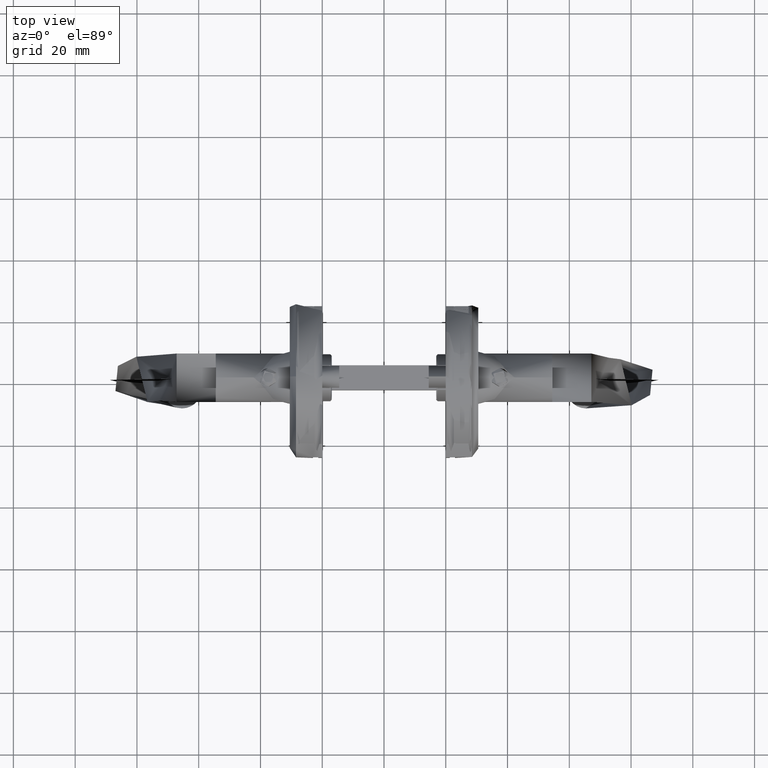
[diagram: clean part render]
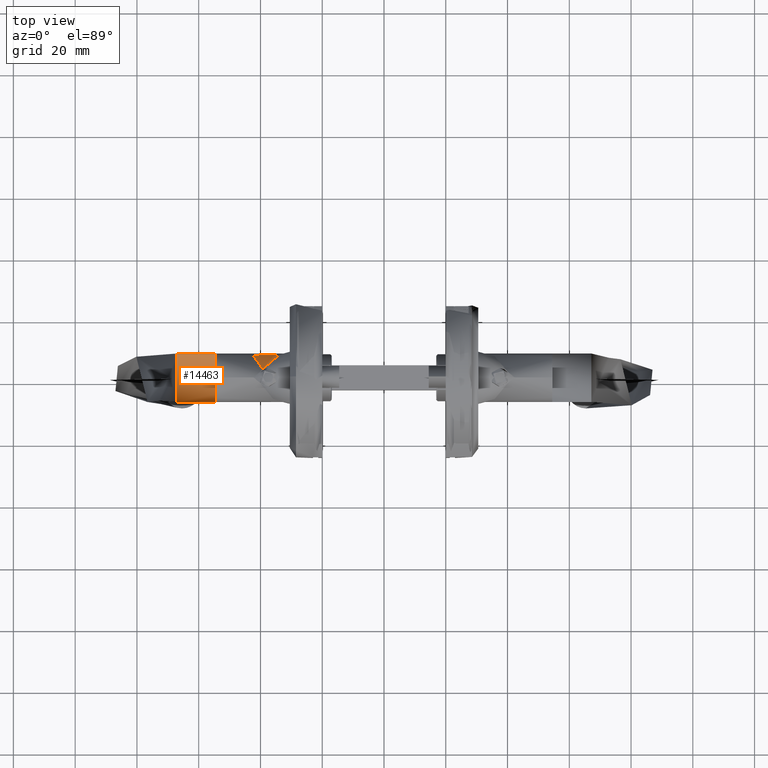
[diagram: same view with one face highlighted and labeled with its STEP entity id]
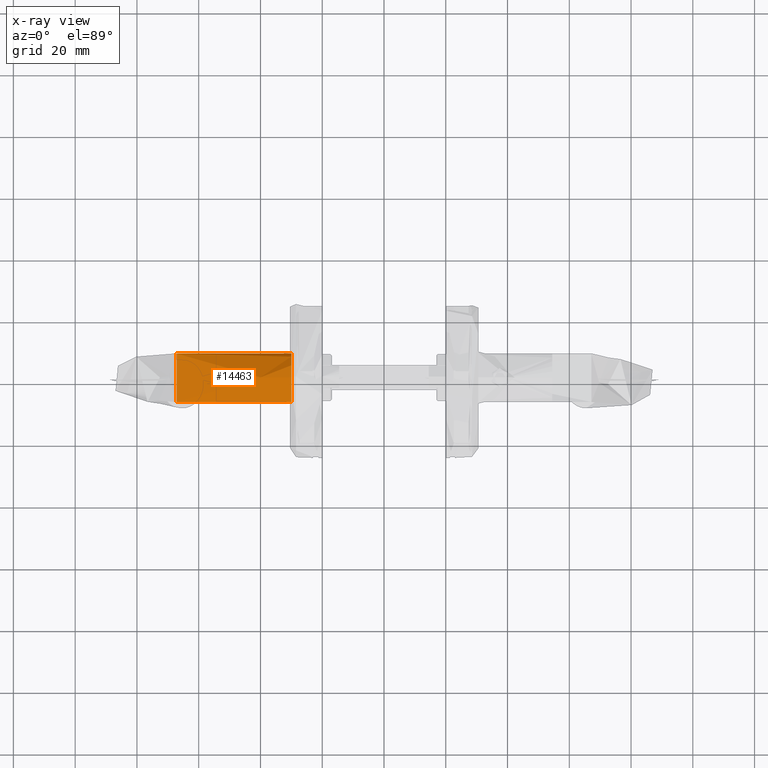
[diagram: x-ray of the same camera — body ghosted, the highlighted face saturated]
A machine part, top view. The second image highlights one B-rep face of the part: STEP entity #14463.
The next image is the same camera in x-ray: the body ghosted, the highlighted face saturated — about 0% of this face is hidden behind the body in this view.
In plain terms, the highlighted cylindrical surface (bore or boss wall) has radius 7.85 mm, axis along (1, -0, 0).
Its self-contained STEP definition (entity closure, byte-faithful):
#32 = CARTESIAN_POINT ( 'NONE',  ( -14.35357129306534300, -6.399310320377332500, 34.42183017396698800 ) ) ;
#115 = CARTESIAN_POINT ( 'NONE',  ( -17.65104224893137200, -0.5485955849642213400, 32.45115226543157400 ) ) ;
#200 = CARTESIAN_POINT ( 'NONE',  ( -17.57262974543936100, 1.134681050054269400, 32.49801417580253800 ) ) ;
#796 = CARTESIAN_POINT ( 'NONE',  ( -5.253388453544001600, -6.418151136303375600, 39.85854754309335800 ) ) ;
#859 = FACE_BOUND ( 'NONE', #15450, .T. ) ;
#967 = CARTESIAN_POINT ( 'NONE',  ( -2.316176063174189000, 2.370476067375542100, 8.310737631373999800 ) ) ;
#968 = CARTESIAN_POINT ( 'NONE',  ( -4.109018551959541900, -5.413163599464264000, 40.54156674517761900 ) ) ;
#1051 = CARTESIAN_POINT ( 'NONE',  ( -2.125298850725605000, 1.653862943130006300, 9.381742250496421000 ) ) ;
#1142 = CARTESIAN_POINT ( 'NONE',  ( -1.955297538070216400, 0.3307107556887429200, 5.016492887881394600 ) ) ;
#1143 = CARTESIAN_POINT ( 'NONE',  ( -9.201717365671292700, -7.828076704413113000, 37.50071009586421400 ) ) ;
#1163 = CYLINDRICAL_SURFACE ( 'NONE', #4557, 7.849999999999999600 ) ;
#1525 = CARTESIAN_POINT ( 'NONE',  ( -1.955280179655495500, -0.3298365753949350500, 9.983558267054554800 ) ) ;
#1717 = CARTESIAN_POINT ( 'NONE',  ( -15.99875071225102200, 4.823530211635191900, 33.43861643824055100 ) ) ;
#1753 = CARTESIAN_POINT ( 'NONE',  ( -2.316444650212627500, -2.371347067262874000, 6.691386533385500700 ) ) ;
#1968 = CARTESIAN_POINT ( 'NONE',  ( -10.99382604289245100, -7.762390882508214000, 36.42972526430688200 ) ) ;
#2016 = B_SPLINE_CURVE_WITH_KNOTS ( 'NONE', 3,
 ( #16444, #18392, #20438, #16703, #18477, #10827, #18652, #18568, #1051, #10661, #12630, #967, #16362, #3020, #6922, #6833, #8623, #20611, #2931, #16530, #8789, #10744, #5067, #24342, #12713, #16614, #4981, #20523, #24430, #1142, #20269, #4723, #12802, #14743, #21178, #21594, #9932, #8230, #21832, #3049, #18598, #24543, #14858, #1753, #21565, #14825, #7264, #24764, #13862, #6281, #24718, #5678, #14247, #19037, #24898, #13348, #13268, #9435, #17250, #1525, #5615, #13436 ),
 .UNSPECIFIED., .T., .F.,
 ( 4, 2, 2, 2, 2, 2, 2, 2, 2, 2, 2, 2, 2, 2, 2, 2, 2, 2, 2, 2, 2, 2, 2, 2, 2, 2, 2, 2, 2, 2, 4 ),
 ( 0.0000000000000000000, 0.0004916676346564895700, 0.0009833352693129791500, 0.001475002903969468700, 0.001966670538625958300, 0.002950005807938938300, 0.003441673442595425700, 0.003933341077251913100, 0.004425008711908401400, 0.004916676346564888800, 0.005408343981221377100, 0.005900011615877864500, 0.006391679250534351900, 0.006883346885190840200, 0.007375014519847327600, 0.007866682154503815800, 0.008358349789160302400, 0.008850017423816790600, 0.009341685058473278900, 0.009833352693129767200, 0.01032502032778625400, 0.01081668796244274200, 0.01130835559709923000, 0.01180002323175571900, 0.01229169086641220500, 0.01278335850106869300, 0.01376669377038167300, 0.01425836140503816300, 0.01475002903969465500, 0.01524169667435114700, 0.01573336430900763900 ),
 .UNSPECIFIED. ) ;
#2056 = CARTESIAN_POINT ( 'NONE',  ( -15.85750056251942300, -5.020785842061797200, 33.52303220819850800 ) ) ;
#2139 = CARTESIAN_POINT ( 'NONE',  ( -14.14800668126363100, -6.540521879636009400, 34.54468239758804800 ) ) ;
#2299 = CARTESIAN_POINT ( 'NONE',  ( -16.32109289892299100, -4.378084431324863200, 33.24597406632418000 ) ) ;
#2665 = AXIS2_PLACEMENT_3D ( 'NONE', #21843, #12409, #12321 ) ;
#2673 = CARTESIAN_POINT ( 'NONE',  ( -2.421592569544382700, -2.734158000283482400, 41.54847655102713600 ) ) ;
#2839 = CARTESIAN_POINT ( 'NONE',  ( -2.180633123493969100, 1.908906402951196800, 41.69178392970900400 ) ) ;
#2931 = CARTESIAN_POINT ( 'NONE',  ( -2.316578114705570200, 2.371764267103500400, 6.692637083956163300 ) ) ;
#2932 = CARTESIAN_POINT ( 'NONE',  ( -2.073011743109473700, -1.411386401086643000, 41.75638261178124100 ) ) ;
#2981 = CARTESIAN_POINT ( 'NONE',  ( -9.799999999999998900, -7.850000000000003200, 37.14319526627224400 ) ) ;
#3020 = CARTESIAN_POINT ( 'NONE',  ( -2.353210535344116800, 2.483744156676578600, 7.828896883903592400 ) ) ;
#3021 = CARTESIAN_POINT ( 'NONE',  ( -4.291505704126604900, -5.598596695899640700, 40.43265611692762500 ) ) ;
#3024 = EDGE_CURVE ( 'NONE', #17427, #17427, #2016, .T. ) ;
#3049 = CARTESIAN_POINT ( 'NONE',  ( -2.178193592102579700, -1.882711239978616600, 5.847114561690562900 ) ) ;
#3115 = CARTESIAN_POINT ( 'NONE',  ( -9.800000000000002500, 7.849999999999996100, 37.14319526627220100 ) ) ;
#3291 = CARTESIAN_POINT ( 'NONE',  ( -9.559678598722662500, 7.847235694768585300, 37.28681045045824800 ) ) ;
#3604 = CARTESIAN_POINT ( 'NONE',  ( -9.800000000000002500, 7.849999999999996100, 37.14319526627220100 ) ) ;
#3808 = EDGE_CURVE ( 'NONE', #7682, #7682, #19570, .T. ) ;
#3849 = CARTESIAN_POINT ( 'NONE',  ( -12.15740308712198600, 7.503612865233395500, 35.73433306627625000 ) ) ;
#4023 = CARTESIAN_POINT ( 'NONE',  ( -10.75686026480675600, -7.795137972507416400, 36.57134386541142800 ) ) ;
#4109 = CARTESIAN_POINT ( 'NONE',  ( -16.71909482841025600, 3.717517051897657700, 33.00811492503296300 ) ) ;
#4274 = CARTESIAN_POINT ( 'NONE',  ( -16.45047633043706300, 4.179111251687365900, 33.16865024038974500 ) ) ;
#4557 = AXIS2_PLACEMENT_3D ( 'NONE', #22550, #24241, #22462 ) ;
#4645 = CARTESIAN_POINT ( 'NONE',  ( -7.438485382097936400, 7.502416347410010300, 38.55360818978967100 ) ) ;
#4723 = CARTESIAN_POINT ( 'NONE',  ( -1.949978466111725200, -0.1628314269536474700, 4.999932383585617800 ) ) ;
#4724 = CARTESIAN_POINT ( 'NONE',  ( -8.845382384011093900, -7.795390510430003400, 37.71361191387427400 ) ) ;
#4807 = CARTESIAN_POINT ( 'NONE',  ( -2.252936717697269700, 2.177262612648156000, 41.64859851981224600 ) ) ;
#4897 = CARTESIAN_POINT ( 'NONE',  ( -1.950577279048938400, -0.2972517273805354000, 41.82933701776780600 ) ) ;
#4981 = CARTESIAN_POINT ( 'NONE',  ( -2.027546660310505500, 1.111073571916674700, 5.254535162568868300 ) ) ;
#4982 = CARTESIAN_POINT ( 'NONE',  ( -3.741416826449961000, 5.019479760348146700, 40.75999446177371500 ) ) ;
#5067 = CARTESIAN_POINT ( 'NONE',  ( -2.178237088088306200, 1.882872320206647100, 5.847327085301101200 ) ) ;
#5615 = CARTESIAN_POINT ( 'NONE',  ( -1.949999999999996000, -0.1663271035317409300, 10.00000000000000000 ) ) ;
#5678 = CARTESIAN_POINT ( 'NONE',  ( -2.258555993685986700, -2.183181670281116600, 8.760974231041256400 ) ) ;
#5882 = CARTESIAN_POINT ( 'NONE',  ( -16.30616993301565300, 4.400080328575047200, 33.25489252523922800 ) ) ;
#6057 = CARTESIAN_POINT ( 'NONE',  ( -11.69943884292389800, -7.620579195227852800, 36.00802767375568400 ) ) ;
#6141 = CARTESIAN_POINT ( 'NONE',  ( -14.95152921689428500, -5.928712662208921500, 34.06447070469633300 ) ) ;
#6281 = CARTESIAN_POINT ( 'NONE',  ( -2.332127616856067400, -2.419613174249177800, 8.150025874492433400 ) ) ;
#6524 = ORIENTED_EDGE ( 'NONE', *, *, #11182, .T. ) ;
#6833 = CARTESIAN_POINT ( 'NONE',  ( -2.358767590165169900, 2.500112044877545300, 7.337458955391063900 ) ) ;
#6834 = CARTESIAN_POINT ( 'NONE',  ( -2.865164771531902900, 3.688091781041662900, 41.28304057995937600 ) ) ;
#6922 = CARTESIAN_POINT ( 'NONE',  ( -2.358691909127926100, 2.499886779604183500, 7.665969627596680900 ) ) ;
#6923 = CARTESIAN_POINT ( 'NONE',  ( -5.451299777050556900, 6.540086302131724600, 39.73958289505424100 ) ) ;
#7264 = CARTESIAN_POINT ( 'NONE',  ( -2.358719915615795900, -2.499970141168991900, 7.334772854630341700 ) ) ;
#7368 = EDGE_LOOP ( 'NONE', ( #17516 ) ) ;
#7397 = ORIENTED_EDGE ( 'NONE', *, *, #3024, .F. ) ;
#7507 = CARTESIAN_POINT ( 'NONE',  ( -10.75477341246245200, 7.795372452662993700, 36.57259103752255000 ) ) ;
#7581 = CARTESIAN_POINT ( 'NONE',  ( -10.04008003149096800, 7.847240759425253600, 36.99971548413870400 ) ) ;
#7682 = VERTEX_POINT ( 'NONE', #11891 ) ;
#7831 = CARTESIAN_POINT ( 'NONE',  ( -17.64945818387600700, 0.2963723960978519300, 32.45209895519838700 ) ) ;
#7998 = CARTESIAN_POINT ( 'NONE',  ( -13.08007296119672700, -7.148519040319141200, 35.18291497585266100 ) ) ;
#8079 = CARTESIAN_POINT ( 'NONE',  ( -10.04036629808053900, -7.847235608720925600, 36.99954440173789300 ) ) ;
#8165 = CARTESIAN_POINT ( 'NONE',  ( -17.41904579791604500, -1.910195872802551400, 32.58980103201470500 ) ) ;
#8230 = CARTESIAN_POINT ( 'NONE',  ( -2.098649725234988900, -1.526616055230516600, 5.513571094196465500 ) ) ;
#8536 = CARTESIAN_POINT ( 'NONE',  ( -1.966244523914235700, -0.5775107957772281900, 41.82001593003419500 ) ) ;
#8623 = CARTESIAN_POINT ( 'NONE',  ( -2.353169705818936500, 2.483619098085724000, 7.170577947304412400 ) ) ;
#8705 = CARTESIAN_POINT ( 'NONE',  ( -4.855143307316787100, -6.118175363035818200, 40.09625494118125000 ) ) ;
#8789 = CARTESIAN_POINT ( 'NONE',  ( -2.254673965305798300, 2.167789861347161100, 6.244209587272374400 ) ) ;
#8790 = CARTESIAN_POINT ( 'NONE',  ( -3.132125207152332900, 4.151313813516864600, 41.12367548384519000 ) ) ;
#8879 = CARTESIAN_POINT ( 'NONE',  ( -6.523099367792066300, 7.150169549534139100, 39.09997275277721200 ) ) ;
#9087 = ORIENTED_EDGE ( 'NONE', *, *, #9237, .T. ) ;
#9237 = EDGE_CURVE ( 'NONE', #11614, #11520, #22105, .T. ) ;
#9435 = CARTESIAN_POINT ( 'NONE',  ( -1.990504578532325400, -0.8108120482076873700, 9.870512575395322200 ) ) ;
#9460 = CARTESIAN_POINT ( 'NONE',  ( -11.69441882599391600, 7.632902056393172400, 36.01102780221668800 ) ) ;
#9791 = CARTESIAN_POINT ( 'NONE',  ( -10.27996913007882200, -7.836230745084145100, 36.85634980983410700 ) ) ;
#9867 = CARTESIAN_POINT ( 'NONE',  ( -16.46699291987990300, -4.152732065929569700, 33.15877937924341300 ) ) ;
#9917 = CARTESIAN_POINT ( 'NONE',  ( -1.949999999999996800, 2.164934898019186600E-016, 9.999999999999998200 ) ) ;
#9932 = CARTESIAN_POINT ( 'NONE',  ( -2.049972585820543500, -1.256354931608745500, 5.332506363626000800 ) ) ;
#9952 = CARTESIAN_POINT ( 'NONE',  ( -9.918725322543073400, -7.849999999999999600, 37.07224107943016400 ) ) ;
#10577 = CARTESIAN_POINT ( 'NONE',  ( -2.756092622608835400, -3.475539224899287600, 41.34890607050545700 ) ) ;
#10601 = FACE_OUTER_BOUND ( 'NONE', #13763, .T. ) ;
#10661 = CARTESIAN_POINT ( 'NONE',  ( -2.204687313181853200, 1.997229744117844400, 9.038161069933455100 ) ) ;
#10662 = CARTESIAN_POINT ( 'NONE',  ( -6.089938077111170900, -6.935400571786017200, 39.35916314962603500 ) ) ;
#10744 = CARTESIAN_POINT ( 'NONE',  ( -2.205139297483595900, 1.987296848023907000, 5.974557873437214900 ) ) ;
#10745 = CARTESIAN_POINT ( 'NONE',  ( -4.647200406563943200, 5.927608666410011800, 40.21943120990394500 ) ) ;
#10827 = CARTESIAN_POINT ( 'NONE',  ( -2.027718302237828200, 1.112353659052460500, 9.744878191350077000 ) ) ;
#11182 = EDGE_CURVE ( 'NONE', #11520, #11614, #16174, .T. ) ;
#11420 = CARTESIAN_POINT ( 'NONE',  ( -15.49113388039177200, 5.413003490075698900, 33.74198507739902200 ) ) ;
#11520 = VERTEX_POINT ( 'NONE', #24395 ) ;
#11614 = VERTEX_POINT ( 'NONE', #2981 ) ;
#11672 = CARTESIAN_POINT ( 'NONE',  ( -17.35025921179665100, 2.218023987386423400, 32.63091017519848700 ) ) ;
#11891 = CARTESIAN_POINT ( 'NONE',  ( -1.950000000000000400, 2.164934898019130600E-016, -4.837936020300735600E-031 ) ) ;
#11921 = CARTESIAN_POINT ( 'NONE',  ( -16.73408274044124500, -3.689508741532313800, 32.99915765216238800 ) ) ;
#12321 = DIRECTION ( 'NONE',  ( 1.000000000000000000, -1.110223024625213700E-016, -6.162975822039153600E-032 ) ) ;
#12409 = DIRECTION ( 'NONE',  ( -8.628166150854809000E-032, -7.268422299037821300E-031, 1.000000000000000000 ) ) ;
#12456 = CARTESIAN_POINT ( 'NONE',  ( -7.442851232686801500, -7.503692363737226100, 38.55135595264719200 ) ) ;
#12547 = CARTESIAN_POINT ( 'NONE',  ( -2.027475220185856100, -1.135386333156268400, 41.78353077638249900 ) ) ;
#12630 = CARTESIAN_POINT ( 'NONE',  ( -2.258489346735789400, 2.182940008413202000, 8.761182814414112800 ) ) ;
#12631 = CARTESIAN_POINT ( 'NONE',  ( -9.681299806161545600, -7.850000000000003200, 37.21413421223150000 ) ) ;
#12713 = CARTESIAN_POINT ( 'NONE',  ( -2.098814674166303200, 1.527437675453569900, 5.514210146021991200 ) ) ;
#12714 = CARTESIAN_POINT ( 'NONE',  ( -4.843451137757957000, 6.092530262975191000, 40.10231697249330600 ) ) ;
#12802 = CARTESIAN_POINT ( 'NONE',  ( -1.955152015191741900, -0.3275476067856499800, 5.016033858577822400 ) ) ;
#12803 = CARTESIAN_POINT ( 'NONE',  ( -3.764512232190127400, -5.026181194617136000, 40.74716455835411500 ) ) ;
#13224 = CARTESIAN_POINT ( 'NONE',  ( -9.200900521763756500, 7.828017236973570500, 37.50116973058609900 ) ) ;
#13268 = CARTESIAN_POINT ( 'NONE',  ( -2.027775020038261400, -1.112723584859272900, 9.744680884073286400 ) ) ;
#13348 = CARTESIAN_POINT ( 'NONE',  ( -2.049868104465798700, -1.255727908668479200, 9.667869604537893100 ) ) ;
#13378 = CARTESIAN_POINT ( 'NONE',  ( -15.83563334064745700, 5.026006546491918100, 33.53610078458348900 ) ) ;
#13436 = CARTESIAN_POINT ( 'NONE',  ( -1.949999999999996400, 3.388131789017201400E-016, 9.999999999999998200 ) ) ;
#13625 = CARTESIAN_POINT ( 'NONE',  ( -12.16536347142613500, -7.489068756313471900, 35.72957567684014200 ) ) ;
#13710 = CARTESIAN_POINT ( 'NONE',  ( -17.07664006248831300, -2.957358014262647200, 32.79443404549518700 ) ) ;
#13763 = EDGE_LOOP ( 'NONE', ( #9087, #6524 ) ) ;
#13862 = CARTESIAN_POINT ( 'NONE',  ( -2.353272379704622000, -2.483927050670778200, 7.827365174470029900 ) ) ;
#13876 = CARTESIAN_POINT ( 'NONE',  ( -17.59208916033434600, -1.100306816418359600, 32.48638458465227800 ) ) ;
#14247 = CARTESIAN_POINT ( 'NONE',  ( -2.204762430838682600, -1.997535714934925100, 9.037818931509381300 ) ) ;
#14409 = CARTESIAN_POINT ( 'NONE',  ( -3.149671151634519700, -4.179344478324840600, 41.11406583271772100 ) ) ;
#14463 = ADVANCED_FACE ( 'NONE', ( #859, #20962, #10601 ), #1163, .F. ) ;
#14493 = CARTESIAN_POINT ( 'NONE',  ( -2.007757005492132800, 1.099158828670636000, 41.79505890844694700 ) ) ;
#14578 = CARTESIAN_POINT ( 'NONE',  ( -9.799999999999998900, -7.850000000000003200, 37.14319526627224400 ) ) ;
#14664 = CARTESIAN_POINT ( 'NONE',  ( -5.245377951390922000, 6.398571686195714900, 39.86246615392765600 ) ) ;
#14743 = CARTESIAN_POINT ( 'NONE',  ( -1.975438278726478800, -0.6520438707957761900, 5.080865027122206900 ) ) ;
#14744 = CARTESIAN_POINT ( 'NONE',  ( -8.607514503791597000, 7.762575857938896800, 37.85560955154471700 ) ) ;
#14825 = CARTESIAN_POINT ( 'NONE',  ( -2.353057057999240700, -2.483281829276065900, 7.168260144729456900 ) ) ;
#14858 = CARTESIAN_POINT ( 'NONE',  ( -2.277493905325215900, -2.244724847799442800, 6.387186893733582100 ) ) ;
#15450 = EDGE_LOOP ( 'NONE', ( #7397 ) ) ;
#15488 = CARTESIAN_POINT ( 'NONE',  ( -13.51028545492318700, 6.935280215234008900, 34.92580573404001900 ) ) ;
#15579 = CARTESIAN_POINT ( 'NONE',  ( -9.799999999999998900, -7.850000000000003200, 37.14319526627224400 ) ) ;
#15662 = CARTESIAN_POINT ( 'NONE',  ( -14.75518678323899700, -6.093628479053357700, 34.18181144907029500 ) ) ;
#15750 = CARTESIAN_POINT ( 'NONE',  ( -12.39775539888733700, -7.411719953067242600, 35.59069056042803000 ) ) ;
#16174 = B_SPLINE_CURVE_WITH_KNOTS ( 'NONE', 3,
 ( #3604, #19236, #7581, #19153, #25004, #7507, #21110, #9460, #3849, #23062, #15488, #17447, #21363, #19312, #11420, #13378, #1717, #5882, #4274, #4109, #21773, #19489, #11672, #17866, #200, #21693, #7831, #115, #13876, #8165, #17704, #23324, #13710, #21611, #11921, #9867, #2299, #2056, #17618, #6141, #15662, #32, #2139, #21440, #7998, #15750, #13625, #6057, #19737, #1968, #4023, #17532, #9791, #8079, #9952, #15579 ),
 .UNSPECIFIED., .F., .F.,
 ( 4, 2, 2, 2, 2, 2, 2, 2, 2, 2, 2, 2, 2, 2, 2, 2, 2, 2, 2, 2, 2, 2, 2, 2, 2, 2, 2, 4 ),
 ( -1.888204577493560600E-005, 0.0003960536774215158000, 0.0008109894006179672100, 0.001640860847010885500, 0.003300603739796721300, 0.004960346632582557500, 0.006620089525368394600, 0.007449960971761305400, 0.008279832418154215200, 0.009109703864547123400, 0.009939575310940031500, 0.01159931820372584400, 0.01242918965011875100, 0.01325906109651165500, 0.01491880398929746600, 0.01574867543569036900, 0.01657854688208327100, 0.01740841832847617500, 0.01823828977486907600, 0.01989803266765488600, 0.02072790411404779700, 0.02155777556044070600, 0.02321751845322652900, 0.02404738989961944400, 0.02487726134601236600, 0.02570713279240528100, 0.02612206851560174700, 0.02653700423879821700 ),
 .UNSPECIFIED. ) ;
#16280 = CARTESIAN_POINT ( 'NONE',  ( -1.948892287110549800, 0.5475310466646640100, 41.83025616357124900 ) ) ;
#16362 = CARTESIAN_POINT ( 'NONE',  ( -2.331953651937851600, 2.419078772989927500, 8.152085949960667900 ) ) ;
#16363 = CARTESIAN_POINT ( 'NONE',  ( -9.320877216740267800, -7.836278607821168600, 37.42951053839357900 ) ) ;
#16444 = CARTESIAN_POINT ( 'NONE',  ( -1.949999999999996400, 3.388131789017201400E-016, 9.999999999999998200 ) ) ;
#16530 = CARTESIAN_POINT ( 'NONE',  ( -2.277701288959405300, 2.245415541473274600, 6.388600133605328900 ) ) ;
#16531 = CARTESIAN_POINT ( 'NONE',  ( -2.522794551400386900, 2.955963447450026500, 41.48744962133172700 ) ) ;
#16614 = CARTESIAN_POINT ( 'NONE',  ( -2.050145285200957200, 1.257407322524557400, 5.333123441028853900 ) ) ;
#16615 = CARTESIAN_POINT ( 'NONE',  ( -2.424436376671944300, 2.701795312335384800, 41.54618120154565700 ) ) ;
#16703 = CARTESIAN_POINT ( 'NONE',  ( -1.975360598605850000, 0.6506773914354796500, 9.919382335193834200 ) ) ;
#17038 = CARTESIAN_POINT ( 'NONE',  ( -8.843981094461296900, 7.795230852320259800, 37.71438113597325500 ) ) ;
#17250 = CARTESIAN_POINT ( 'NONE',  ( -1.975401069011177800, -0.6512087187244555200, 9.919252164818821900 ) ) ;
#17427 = VERTEX_POINT ( 'NONE', #9917 ) ;
#17447 = CARTESIAN_POINT ( 'NONE',  ( -14.34680052091247600, 6.418016425957547200, 34.42587661176239100 ) ) ;
#17516 = ORIENTED_EDGE ( 'NONE', *, *, #3808, .F. ) ;
#17532 = CARTESIAN_POINT ( 'NONE',  ( -10.39943888832382700, -7.827993830692731700, 36.78495072354618100 ) ) ;
#17618 = CARTESIAN_POINT ( 'NONE',  ( -15.51390648425270800, -5.406969678426413900, 33.72837541473656800 ) ) ;
#17704 = CARTESIAN_POINT ( 'NONE',  ( -17.34667548745521500, -2.178610712511351600, 32.63305192761556100 ) ) ;
#17866 = CARTESIAN_POINT ( 'NONE',  ( -17.52710721624412200, 1.410744559498090100, 32.52521994768846300 ) ) ;
#18230 = CARTESIAN_POINT ( 'NONE',  ( -4.084930582747830400, 5.405740852542281000, 40.55497995662725700 ) ) ;
#18312 = CARTESIAN_POINT ( 'NONE',  ( -3.293975467768839300, -4.400294596101583800, 41.02795716836389800 ) ) ;
#18392 = CARTESIAN_POINT ( 'NONE',  ( -1.949999999999996800, 0.1663271035317404100, 9.999999999999996400 ) ) ;
#18477 = CARTESIAN_POINT ( 'NONE',  ( -1.990422550186742100, 0.8100577186500040900, 9.870783678293349800 ) ) ;
#18478 = CARTESIAN_POINT ( 'NONE',  ( -9.559967261880132100, -7.847241894160326600, 37.28664175653827300 ) ) ;
#18568 = CARTESIAN_POINT ( 'NONE',  ( -2.098619396321420400, 1.526494297239594300, 9.486554311812366100 ) ) ;
#18569 = CARTESIAN_POINT ( 'NONE',  ( -6.083113001922944500, 6.932022858962011600, 39.36254414486121800 ) ) ;
#18598 = CARTESIAN_POINT ( 'NONE',  ( -2.205016718890029400, -1.986824642136731700, 5.973967072932342900 ) ) ;
#18652 = CARTESIAN_POINT ( 'NONE',  ( -2.049835540205383400, 1.255547246565430300, 9.667990771411926000 ) ) ;
#18911 = CARTESIAN_POINT ( 'NONE',  ( -9.320244159565385500, 7.836242515308661900, 37.42987078140456000 ) ) ;
#19037 = CARTESIAN_POINT ( 'NONE',  ( -2.125309370236192900, -1.653917895037597500, 9.381705236244966900 ) ) ;
#19153 = CARTESIAN_POINT ( 'NONE',  ( -10.27921085678834800, 7.836273534827753000, 36.85680297907925500 ) ) ;
#19236 = CARTESIAN_POINT ( 'NONE',  ( -9.918725322546423600, 7.849999999999992500, 37.07224107943572700 ) ) ;
#19312 = CARTESIAN_POINT ( 'NONE',  ( -15.30865249949267200, 5.598441022738334100, 33.85104199734465900 ) ) ;
#19489 = CARTESIAN_POINT ( 'NONE',  ( -17.17856143150962500, 2.733753295218930700, 32.73352245809192600 ) ) ;
#19570 = CIRCLE ( 'NONE', #2665, 7.849999999999999600 ) ;
#19737 = CARTESIAN_POINT ( 'NONE',  ( -11.46511523434257300, -7.675110689097272700, 36.14806722681306200 ) ) ;
#20182 = CARTESIAN_POINT ( 'NONE',  ( -7.902563650234211100, 7.632211850720628900, 38.27657156623457300 ) ) ;
#20269 = CARTESIAN_POINT ( 'NONE',  ( -1.950021670309640900, 0.1649011203877664400, 5.000068044777516500 ) ) ;
#20270 = CARTESIAN_POINT ( 'NONE',  ( -8.609349477555454700, -7.762842294377650300, 37.85461874465339300 ) ) ;
#20355 = CARTESIAN_POINT ( 'NONE',  ( -7.905820736803670800, -7.632958897752588200, 38.27486481158415200 ) ) ;
#20438 = CARTESIAN_POINT ( 'NONE',  ( -1.955276754880814800, 0.3296665543572496700, 9.983568383296791600 ) ) ;
#20523 = CARTESIAN_POINT ( 'NONE',  ( -1.990421415154602000, 0.8099368660496053500, 5.129219729421333100 ) ) ;
#20611 = CARTESIAN_POINT ( 'NONE',  ( -2.332032967751783500, 2.419320908842566900, 6.849024537163275600 ) ) ;
#20962 = FACE_OUTER_BOUND ( 'NONE', #7368, .T. ) ;
#21110 = CARTESIAN_POINT ( 'NONE',  ( -10.99083180392270100, 7.762815129671639400, 36.43151472073262200 ) ) ;
#21178 = CARTESIAN_POINT ( 'NONE',  ( -1.990259856097237300, -0.8084216882191673800, 5.128687615706732900 ) ) ;
#21363 = CARTESIAN_POINT ( 'NONE',  ( -14.74503013842676500, 6.118035134831747400, 34.18788139656155800 ) ) ;
#21440 = CARTESIAN_POINT ( 'NONE',  ( -13.51790596570953800, -6.931380054749817900, 34.92125146428011800 ) ) ;
#21565 = CARTESIAN_POINT ( 'NONE',  ( -2.331899841439348400, -2.418910466870164600, 6.847610447314218100 ) ) ;
#21594 = CARTESIAN_POINT ( 'NONE',  ( -2.027393085559542600, -1.110030853112577100, 5.254003660950466800 ) ) ;
#21611 = CARTESIAN_POINT ( 'NONE',  ( -16.85615532432864700, -3.450525910999924700, 32.92620303102256700 ) ) ;
#21693 = CARTESIAN_POINT ( 'NONE',  ( -17.63381783303166400, 0.5766909084736213700, 32.46144614712312700 ) ) ;
#21773 = CARTESIAN_POINT ( 'NONE',  ( -16.84406304830303800, 3.475225854667894700, 32.93342977586627300 ) ) ;
#21832 = CARTESIAN_POINT ( 'NONE',  ( -2.124852006187539600, -1.651858893999305300, 5.616388023070412800 ) ) ;
#21843 = CARTESIAN_POINT ( 'NONE',  ( -9.799999999999998900, 1.088018564132705800E-015, 0.0000000000000000000 ) ) ;
#22105 = B_SPLINE_CURVE_WITH_KNOTS ( 'NONE', 3,
 ( #14578, #12631, #18478, #16363, #1143, #4724, #20270, #20355, #12456, #22225, #10662, #796, #8705, #3021, #968, #12803, #24431, #18312, #14409, #22313, #10577, #2673, #24184, #2932, #12547, #8536, #4897, #16280, #14493, #2839, #4807, #16615, #16531, #24343, #6834, #8790, #22398, #4982, #18230, #10745, #12714, #14664, #6923, #18569, #8879, #4645, #20182, #14744, #17038, #13224, #18911, #3291, #22659, #3115 ),
 .UNSPECIFIED., .F., .F.,
 ( 4, 2, 2, 2, 2, 2, 2, 2, 2, 2, 2, 2, 2, 2, 2, 2, 2, 2, 2, 2, 2, 2, 2, 2, 2, 2, 4 ),
 ( -1.888204577498781100E-005, 0.0003959655111552773600, 0.0008108130680855425900, 0.001640508181946072500, 0.003299898409667131700, 0.004959288637388191800, 0.006618678865109251800, 0.007448373978969782300, 0.008278069092830313600, 0.009107764206690842400, 0.009937459320551371100, 0.01159684954827243400, 0.01242654466213296100, 0.01325623977599348900, 0.01491563000371455000, 0.01574532511757507900, 0.01657502023143561000, 0.01740471534529613700, 0.01823441045915666700, 0.01989380068687772800, 0.02072349580073825800, 0.02155319091459879200, 0.02321258114231986400, 0.02487197137004093900, 0.02570166648390146900, 0.02611651404083173100, 0.02653136159776199300 ),
 .UNSPECIFIED. ) ;
#22225 = CARTESIAN_POINT ( 'NONE',  ( -6.529965561522666400, -7.153210759653784800, 39.09645747764032100 ) ) ;
#22313 = CARTESIAN_POINT ( 'NONE',  ( -2.881058105316090400, -3.717800037373483000, 41.27434438439179600 ) ) ;
#22398 = CARTESIAN_POINT ( 'NONE',  ( -3.277960369208991600, 4.376674061228869500, 41.03662344895749200 ) ) ;
#22462 = DIRECTION ( 'NONE',  ( -1.000000000000000000, 1.110223024625214000E-016, 0.0000000000000000000 ) ) ;
#22550 = CARTESIAN_POINT ( 'NONE',  ( -9.799999999999998900, 1.088018564132676200E-015, 64.86178108878490900 ) ) ;
#22659 = CARTESIAN_POINT ( 'NONE',  ( -9.681299731970959500, 7.849999999999994300, 37.21413408809051800 ) ) ;
#23062 = CARTESIAN_POINT ( 'NONE',  ( -13.07028796618992700, 7.153095271605280900, 35.18876281310547700 ) ) ;
#23324 = CARTESIAN_POINT ( 'NONE',  ( -17.17505860196401500, -2.703177050661529800, 32.73561586509847400 ) ) ;
#24184 = CARTESIAN_POINT ( 'NONE',  ( -2.249890261526120000, -2.218508354320039900, 41.65090101416439000 ) ) ;
#24241 = DIRECTION ( 'NONE',  ( 8.628166150854809000E-032, 7.268422299037821300E-031, -1.000000000000000000 ) ) ;
#24342 = CARTESIAN_POINT ( 'NONE',  ( -2.124991034199238200, 1.652487650323281000, 5.616965081919944100 ) ) ;
#24343 = CARTESIAN_POINT ( 'NONE',  ( -2.743155555818391100, 3.449113731730470100, 41.35588121246025400 ) ) ;
#24395 = CARTESIAN_POINT ( 'NONE',  ( -9.800000000000002500, 7.849999999999996100, 37.14319526627220100 ) ) ;
#24430 = CARTESIAN_POINT ( 'NONE',  ( -1.975611367669900500, 0.6539639519109038400, 5.081424318018352300 ) ) ;
#24431 = CARTESIAN_POINT ( 'NONE',  ( -3.601393738369163000, -4.823715182278642800, 40.84450788226409700 ) ) ;
#24543 = CARTESIAN_POINT ( 'NONE',  ( -2.254496921815407200, -2.167170158535899100, 6.243169797845420800 ) ) ;
#24718 = CARTESIAN_POINT ( 'NONE',  ( -2.316337309387351200, -2.370987707599415000, 8.309321842416755600 ) ) ;
#24764 = CARTESIAN_POINT ( 'NONE',  ( -2.358739951104625600, -2.500029776963275600, 7.664322337497005800 ) ) ;
#24898 = CARTESIAN_POINT ( 'NONE',  ( -2.098586111927946500, -1.526309635492222100, 9.486678156997696100 ) ) ;
#25004 = CARTESIAN_POINT ( 'NONE',  ( -10.39838903689761400, 7.828068826137218200, 36.78557814954654500 ) ) ;